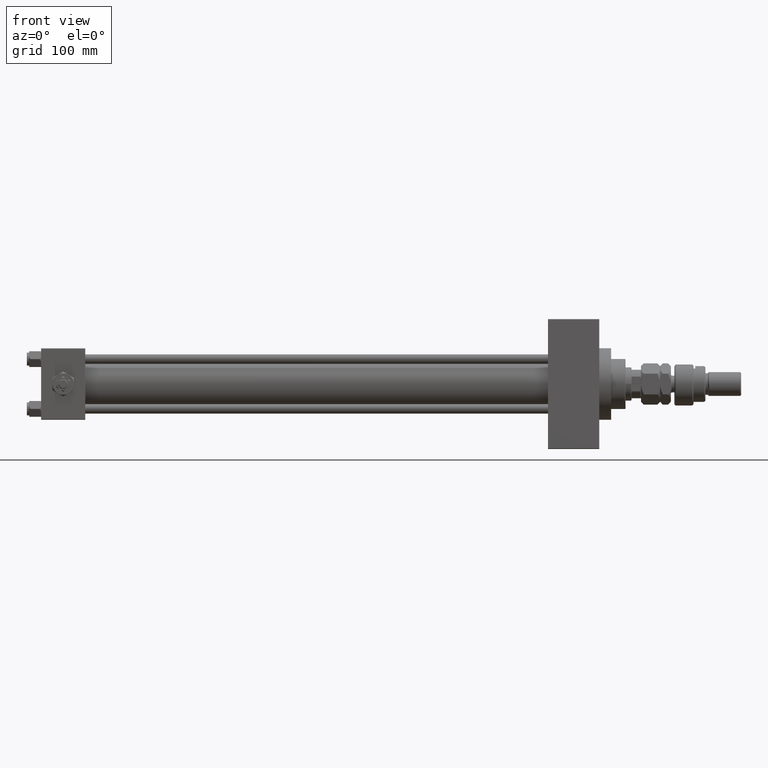
[diagram: clean part render]
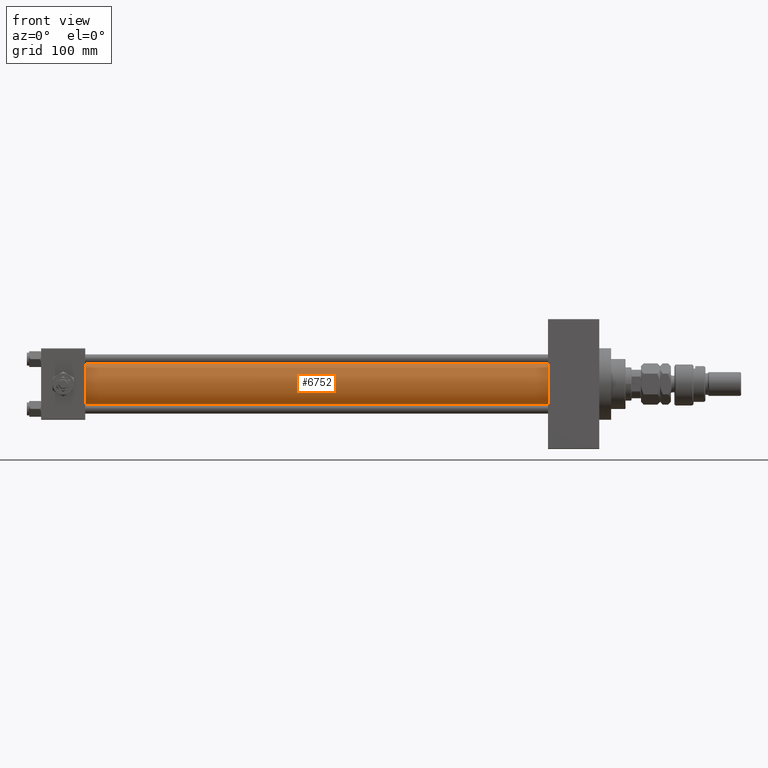
[diagram: same view with one face highlighted and labeled with its STEP entity id]
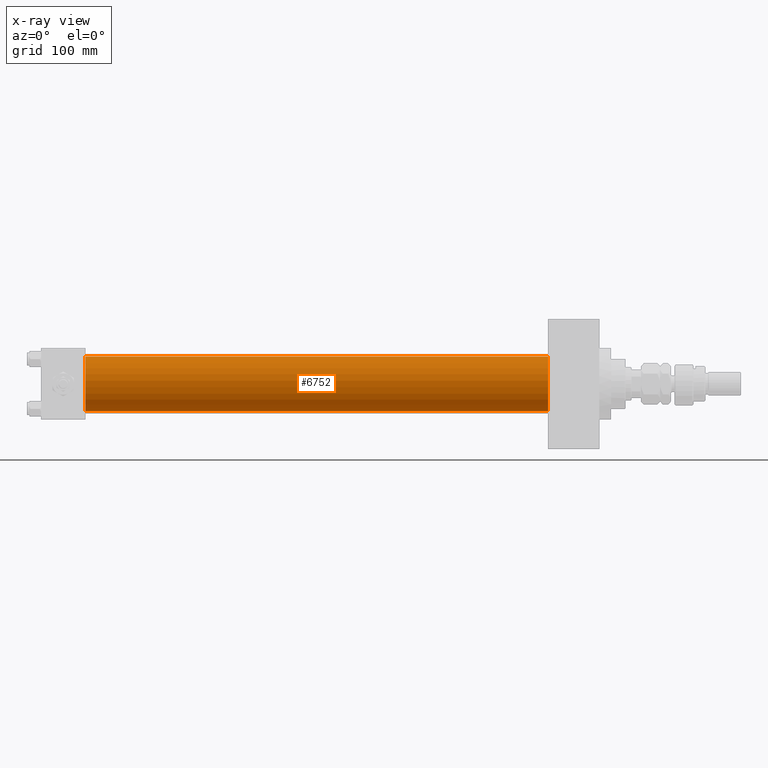
[diagram: x-ray of the same camera — body ghosted, the highlighted face saturated]
A machine part, front view. The second image highlights one B-rep face of the part: STEP entity #6752.
The next image is the same camera in x-ray: the body ghosted, the highlighted face saturated — about 0% of this face is hidden behind the body in this view.
In plain terms, the highlighted cylindrical surface (edge-blend (fillet) strip) has radius 23 mm, axis along (-1, -0, -0).
Its self-contained STEP definition (entity closure, byte-faithful):
#1078 = AXIS2_PLACEMENT_3D ( 'NONE', #18814, #35065, #38751 ) ;
#1715 = CARTESIAN_POINT ( 'NONE',  ( 425.0000000000000000, -2.602085213965210642E-15, 23.00000000000000000 ) ) ;
#5128 = VERTEX_POINT ( 'NONE', #35006 ) ;
#5912 = CARTESIAN_POINT ( 'NONE',  ( 36.99999999999997868, -2.602085213965210642E-15, 23.00000000000000000 ) ) ;
#6752 = ADVANCED_FACE ( 'NONE', ( #29444 ), #45439, .T. ) ;
#6910 = AXIS2_PLACEMENT_3D ( 'NONE', #8732, #16863, #16611 ) ;
#8732 = CARTESIAN_POINT ( 'NONE',  ( 425.0000000000000000, -2.602085213965210642E-15, 0.000000000000000000 ) ) ;
#11062 = VECTOR ( 'NONE', #49697, 1000.000000000000000 ) ;
#11398 = CARTESIAN_POINT ( 'NONE',  ( 425.0000000000000000, 2.146024240737012665E-16, -23.00000000000000000 ) ) ;
#13966 = DIRECTION ( 'NONE',  ( 0.000000000000000000, 0.000000000000000000, 1.000000000000000000 ) ) ;
#14325 = CARTESIAN_POINT ( 'NONE',  ( 425.0000000000000000, -2.602085213965210642E-15, 23.00000000000000000 ) ) ;
#16611 = DIRECTION ( 'NONE',  ( 0.000000000000000000, 0.000000000000000000, -1.000000000000000000 ) ) ;
#16863 = DIRECTION ( 'NONE',  ( 1.000000000000000000, 0.000000000000000000, 0.000000000000000000 ) ) ;
#17704 = EDGE_CURVE ( 'NONE', #45179, #44826, #44605, .T. ) ;
#17845 = CIRCLE ( 'NONE', #1078, 23.00000000000000000 ) ;
#18503 = LINE ( 'NONE', #11398, #42291 ) ;
#18525 = EDGE_CURVE ( 'NONE', #48301, #5128, #17845, .T. ) ;
#18814 = CARTESIAN_POINT ( 'NONE',  ( 36.99999999999997868, -2.602085213965210642E-15, 0.000000000000000000 ) ) ;
#21385 = ORIENTED_EDGE ( 'NONE', *, *, #17704, .F. ) ;
#22356 = DIRECTION ( 'NONE',  ( -1.000000000000000000, -0.000000000000000000, -0.000000000000000000 ) ) ;
#24191 = CARTESIAN_POINT ( 'NONE',  ( 425.0000000000000000, 2.146024240737012665E-16, -23.00000000000000000 ) ) ;
#25606 = ORIENTED_EDGE ( 'NONE', *, *, #44422, .F. ) ;
#27677 = EDGE_LOOP ( 'NONE', ( #25606, #21385, #51398, #40665 ) ) ;
#29444 = FACE_OUTER_BOUND ( 'NONE', #27677, .T. ) ;
#34499 = DIRECTION ( 'NONE',  ( -1.000000000000000000, -0.000000000000000000, -0.000000000000000000 ) ) ;
#35006 = CARTESIAN_POINT ( 'NONE',  ( 36.99999999999997868, 2.146024240737012665E-16, -23.00000000000000000 ) ) ;
#35012 = EDGE_CURVE ( 'NONE', #45179, #48301, #37636, .T. ) ;
#35065 = DIRECTION ( 'NONE',  ( 1.000000000000000000, -0.000000000000000000, 0.000000000000000000 ) ) ;
#37636 = LINE ( 'NONE', #1715, #11062 ) ;
#38751 = DIRECTION ( 'NONE',  ( 0.000000000000000000, 0.000000000000000000, 1.000000000000000000 ) ) ;
#40665 = ORIENTED_EDGE ( 'NONE', *, *, #18525, .T. ) ;
#42291 = VECTOR ( 'NONE', #34499, 1000.000000000000000 ) ;
#44276 = AXIS2_PLACEMENT_3D ( 'NONE', #50158, #22356, #13966 ) ;
#44422 = EDGE_CURVE ( 'NONE', #44826, #5128, #18503, .T. ) ;
#44605 = CIRCLE ( 'NONE', #6910, 23.00000000000000000 ) ;
#44826 = VERTEX_POINT ( 'NONE', #24191 ) ;
#45179 = VERTEX_POINT ( 'NONE', #14325 ) ;
#45439 = CYLINDRICAL_SURFACE ( 'NONE', #44276, 23.00000000000000000 ) ;
#48301 = VERTEX_POINT ( 'NONE', #5912 ) ;
#49697 = DIRECTION ( 'NONE',  ( -1.000000000000000000, -0.000000000000000000, -0.000000000000000000 ) ) ;
#50158 = CARTESIAN_POINT ( 'NONE',  ( 425.0000000000000000, -2.602085213965210642E-15, 0.000000000000000000 ) ) ;
#51398 = ORIENTED_EDGE ( 'NONE', *, *, #35012, .T. ) ;